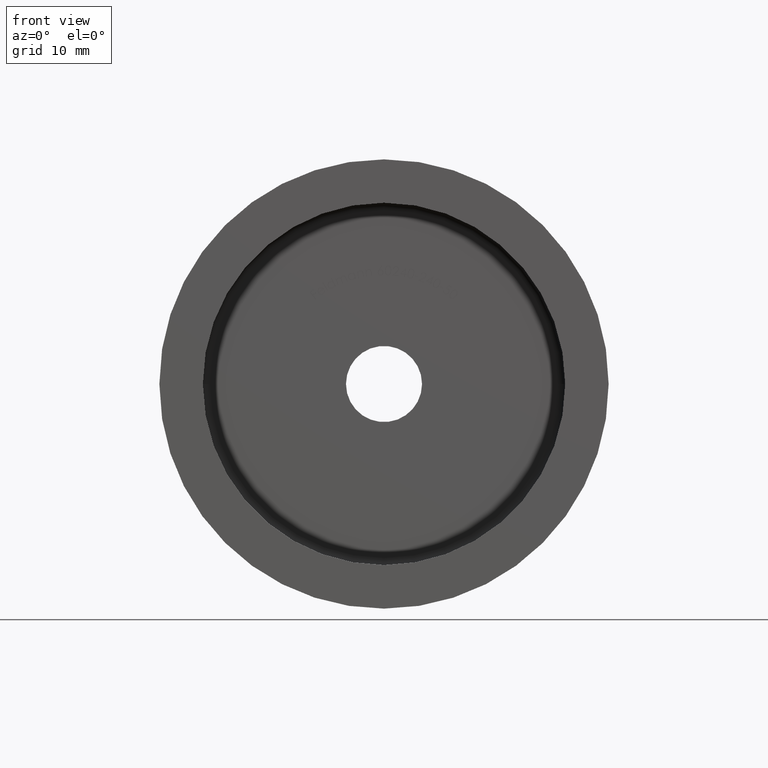
[diagram: clean part render]
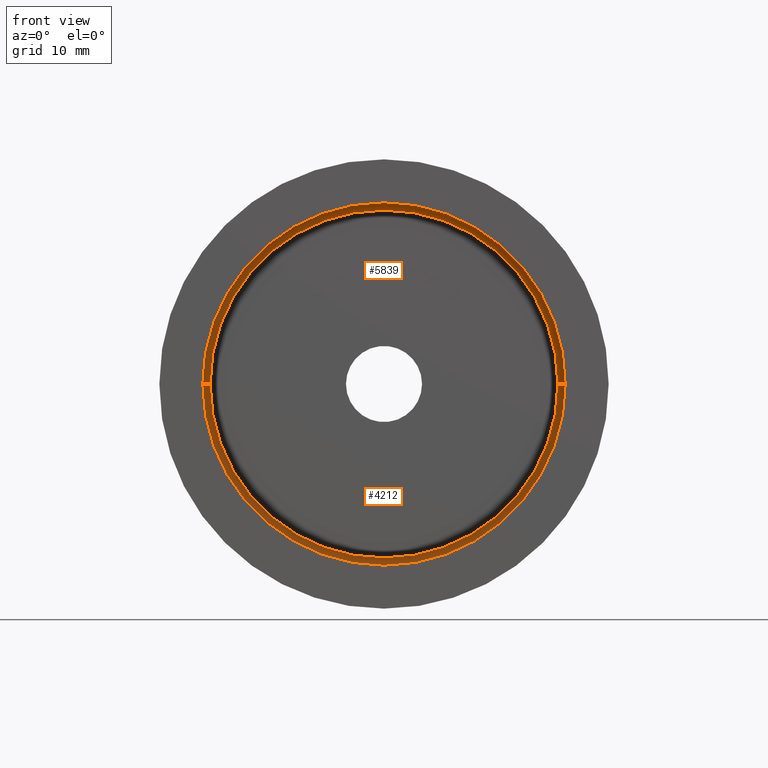
[diagram: same view with one multi-face feature highlighted, each face labeled with its STEP entity id]
A machine part, front view. The highlighted faces form ONE feature: a constant-radius fillet chain: 2 tangent blend faces with common blend radius 1 mm. The faces share edges in the B-rep.
Their STEP definitions:
[1] entity #5839 (Torus):
#2 = CARTESIAN_POINT ( 'NONE',  ( -25.00000000000000000, 44.00000000000001421, 0.000000000000000000 ) ) ;
#304 = AXIS2_PLACEMENT_3D ( 'NONE', #13006, #8448, #5991 ) ;
#769 = CIRCLE ( 'NONE', #304, 25.00000000000000000 ) ;
#778 = CARTESIAN_POINT ( 'NONE',  ( -1.387778780781443210E-16, 45.00000000000001421, 0.000000000000000000 ) ) ;
#909 = VERTEX_POINT ( 'NONE', #10748 ) ;
#1117 = EDGE_CURVE ( 'NONE', #11037, #12065, #4622, .T. ) ;
#1295 = AXIS2_PLACEMENT_3D ( 'NONE', #15080, #13841, #6815 ) ;
#2923 = CARTESIAN_POINT ( 'NONE',  ( 0.000000000000000000, 44.00000000000001421, 0.000000000000000000 ) ) ;
#3745 = DIRECTION ( 'NONE',  ( -1.224646799147353207E-16, -1.699538841808613888E-32, 1.000000000000000000 ) ) ;
#3831 = CIRCLE ( 'NONE', #1295, 1.000000000000000888 ) ;
#4251 = CARTESIAN_POINT ( 'NONE',  ( 3.061616997868383043E-15, 44.00000000000001421, 25.00000000000000000 ) ) ;
#4622 = CIRCLE ( 'NONE', #9635, 25.00000000000000000 ) ;
#4745 = CARTESIAN_POINT ( 'NONE',  ( 24.00000000000000000, 44.00000000000001421, 2.939152317953647894E-15 ) ) ;
#4844 = ORIENTED_EDGE ( 'NONE', *, *, #8884, .T. ) ;
#5131 = DIRECTION ( 'NONE',  ( -1.387778780781445676E-16, 1.000000000000000000, -0.000000000000000000 ) ) ;
#5213 = ORIENTED_EDGE ( 'NONE', *, *, #1117, .F. ) ;
#5343 = DIRECTION ( 'NONE',  ( -1.000000000000000000, 0.000000000000000000, 0.000000000000000000 ) ) ;
#5438 = EDGE_CURVE ( 'NONE', #12065, #909, #769, .T. ) ;
#5733 = AXIS2_PLACEMENT_3D ( 'NONE', #4745, #3745, #6069 ) ;
#5839 = ADVANCED_FACE ( 'NONE', ( #12766 ), #9674, .F. ) ;
#5991 = DIRECTION ( 'NONE',  ( -1.000000000000000000, 0.000000000000000000, 0.000000000000000000 ) ) ;
#6069 = DIRECTION ( 'NONE',  ( 1.000000000000000000, 0.000000000000000000, 1.224646799147353454E-16 ) ) ;
#6156 = EDGE_CURVE ( 'NONE', #909, #6272, #10552, .T. ) ;
#6272 = VERTEX_POINT ( 'NONE', #12277 ) ;
#6360 = DIRECTION ( 'NONE',  ( -1.000000000000000000, -1.387778780781445676E-16, 0.000000000000000000 ) ) ;
#6815 = DIRECTION ( 'NONE',  ( -1.000000000000000000, 0.000000000000000000, 0.000000000000000000 ) ) ;
#7596 = DIRECTION ( 'NONE',  ( 1.387778780781445676E-16, -1.000000000000000000, 0.000000000000000000 ) ) ;
#8448 = DIRECTION ( 'NONE',  ( -1.387778780781445676E-16, 1.000000000000000000, -0.000000000000000000 ) ) ;
#8884 = EDGE_CURVE ( 'NONE', #11037, #11250, #3831, .T. ) ;
#9635 = AXIS2_PLACEMENT_3D ( 'NONE', #11057, #14623, #5343 ) ;
#9674 = TOROIDAL_SURFACE ( 'NONE', #14140, 24.00000000000000000, 1.000000000000000000 ) ;
#10292 = EDGE_LOOP ( 'NONE', ( #11776, #11367, #5213, #4844, #14122 ) ) ;
#10552 = CIRCLE ( 'NONE', #5733, 1.000000000000000888 ) ;
#10748 = CARTESIAN_POINT ( 'NONE',  ( 25.00000000000000000, 44.00000000000001421, 3.061616997868383043E-15 ) ) ;
#11037 = VERTEX_POINT ( 'NONE', #2 ) ;
#11057 = CARTESIAN_POINT ( 'NONE',  ( 0.000000000000000000, 44.00000000000001421, 0.000000000000000000 ) ) ;
#11250 = VERTEX_POINT ( 'NONE', #13858 ) ;
#11367 = ORIENTED_EDGE ( 'NONE', *, *, #5438, .F. ) ;
#11727 = CIRCLE ( 'NONE', #12790, 24.00000000000000000 ) ;
#11776 = ORIENTED_EDGE ( 'NONE', *, *, #6156, .F. ) ;
#12065 = VERTEX_POINT ( 'NONE', #4251 ) ;
#12277 = CARTESIAN_POINT ( 'NONE',  ( 24.00000000000000000, 45.00000000000001421, 3.000384657911015469E-15 ) ) ;
#12699 = EDGE_CURVE ( 'NONE', #6272, #11250, #11727, .T. ) ;
#12766 = FACE_OUTER_BOUND ( 'NONE', #10292, .T. ) ;
#12790 = AXIS2_PLACEMENT_3D ( 'NONE', #778, #7596, #14614 ) ;
#13006 = CARTESIAN_POINT ( 'NONE',  ( 0.000000000000000000, 44.00000000000001421, 0.000000000000000000 ) ) ;
#13841 = DIRECTION ( 'NONE',  ( 0.000000000000000000, -0.000000000000000000, -1.000000000000000000 ) ) ;
#13858 = CARTESIAN_POINT ( 'NONE',  ( -24.00000000000000000, 45.00000000000001421, 0.000000000000000000 ) ) ;
#14122 = ORIENTED_EDGE ( 'NONE', *, *, #12699, .F. ) ;
#14140 = AXIS2_PLACEMENT_3D ( 'NONE', #2923, #5131, #6360 ) ;
#14614 = DIRECTION ( 'NONE',  ( -1.000000000000000000, 0.000000000000000000, 0.000000000000000000 ) ) ;
#14623 = DIRECTION ( 'NONE',  ( -1.387778780781445676E-16, 1.000000000000000000, -0.000000000000000000 ) ) ;
#15080 = CARTESIAN_POINT ( 'NONE',  ( -24.00000000000000000, 44.00000000000001421, 0.000000000000000000 ) ) ;
[2] entity #4212 (Torus):
#2 = CARTESIAN_POINT ( 'NONE',  ( -25.00000000000000000, 44.00000000000001421, 0.000000000000000000 ) ) ;
#603 = DIRECTION ( 'NONE',  ( -1.000000000000000000, -1.387778780781445676E-16, 0.000000000000000000 ) ) ;
#909 = VERTEX_POINT ( 'NONE', #10748 ) ;
#927 = CIRCLE ( 'NONE', #4187, 24.00000000000000000 ) ;
#1176 = AXIS2_PLACEMENT_3D ( 'NONE', #11219, #14701, #603 ) ;
#1295 = AXIS2_PLACEMENT_3D ( 'NONE', #15080, #13841, #6815 ) ;
#2098 = AXIS2_PLACEMENT_3D ( 'NONE', #14572, #12813, #10724 ) ;
#2534 = DIRECTION ( 'NONE',  ( -1.387778780781445676E-16, 1.000000000000000000, -0.000000000000000000 ) ) ;
#2546 = DIRECTION ( 'NONE',  ( -1.000000000000000000, 0.000000000000000000, 0.000000000000000000 ) ) ;
#3353 = ORIENTED_EDGE ( 'NONE', *, *, #6176, .F. ) ;
#3745 = DIRECTION ( 'NONE',  ( -1.224646799147353207E-16, -1.699538841808613888E-32, 1.000000000000000000 ) ) ;
#3831 = CIRCLE ( 'NONE', #1295, 1.000000000000000888 ) ;
#4187 = AXIS2_PLACEMENT_3D ( 'NONE', #7095, #13038, #2546 ) ;
#4212 = ADVANCED_FACE ( 'NONE', ( #12420 ), #11141, .F. ) ;
#4745 = CARTESIAN_POINT ( 'NONE',  ( 24.00000000000000000, 44.00000000000001421, 2.939152317953647894E-15 ) ) ;
#5731 = EDGE_CURVE ( 'NONE', #14440, #11037, #8765, .T. ) ;
#5733 = AXIS2_PLACEMENT_3D ( 'NONE', #4745, #3745, #6069 ) ;
#6069 = DIRECTION ( 'NONE',  ( 1.000000000000000000, 0.000000000000000000, 1.224646799147353454E-16 ) ) ;
#6156 = EDGE_CURVE ( 'NONE', #909, #6272, #10552, .T. ) ;
#6176 = EDGE_CURVE ( 'NONE', #11250, #6272, #927, .T. ) ;
#6272 = VERTEX_POINT ( 'NONE', #12277 ) ;
#6286 = CARTESIAN_POINT ( 'NONE',  ( 0.000000000000000000, 44.00000000000001421, -25.00000000000000000 ) ) ;
#6815 = DIRECTION ( 'NONE',  ( -1.000000000000000000, 0.000000000000000000, 0.000000000000000000 ) ) ;
#7095 = CARTESIAN_POINT ( 'NONE',  ( -1.387778780781443210E-16, 45.00000000000001421, 0.000000000000000000 ) ) ;
#7140 = ORIENTED_EDGE ( 'NONE', *, *, #5731, .F. ) ;
#8765 = CIRCLE ( 'NONE', #11688, 25.00000000000000000 ) ;
#8884 = EDGE_CURVE ( 'NONE', #11037, #11250, #3831, .T. ) ;
#9478 = CARTESIAN_POINT ( 'NONE',  ( 0.000000000000000000, 44.00000000000001421, 0.000000000000000000 ) ) ;
#10552 = CIRCLE ( 'NONE', #5733, 1.000000000000000888 ) ;
#10668 = ORIENTED_EDGE ( 'NONE', *, *, #6156, .T. ) ;
#10724 = DIRECTION ( 'NONE',  ( -1.000000000000000000, 0.000000000000000000, 0.000000000000000000 ) ) ;
#10748 = CARTESIAN_POINT ( 'NONE',  ( 25.00000000000000000, 44.00000000000001421, 3.061616997868383043E-15 ) ) ;
#11037 = VERTEX_POINT ( 'NONE', #2 ) ;
#11141 = TOROIDAL_SURFACE ( 'NONE', #1176, 24.00000000000000000, 1.000000000000000000 ) ;
#11219 = CARTESIAN_POINT ( 'NONE',  ( 0.000000000000000000, 44.00000000000001421, 0.000000000000000000 ) ) ;
#11250 = VERTEX_POINT ( 'NONE', #13858 ) ;
#11688 = AXIS2_PLACEMENT_3D ( 'NONE', #9478, #2534, #11964 ) ;
#11964 = DIRECTION ( 'NONE',  ( -1.000000000000000000, 0.000000000000000000, 0.000000000000000000 ) ) ;
#12277 = CARTESIAN_POINT ( 'NONE',  ( 24.00000000000000000, 45.00000000000001421, 3.000384657911015469E-15 ) ) ;
#12420 = FACE_OUTER_BOUND ( 'NONE', #13845, .T. ) ;
#12813 = DIRECTION ( 'NONE',  ( -1.387778780781445676E-16, 1.000000000000000000, -0.000000000000000000 ) ) ;
#13038 = DIRECTION ( 'NONE',  ( 1.387778780781445676E-16, -1.000000000000000000, 0.000000000000000000 ) ) ;
#13420 = ORIENTED_EDGE ( 'NONE', *, *, #8884, .F. ) ;
#13841 = DIRECTION ( 'NONE',  ( 0.000000000000000000, -0.000000000000000000, -1.000000000000000000 ) ) ;
#13845 = EDGE_LOOP ( 'NONE', ( #14290, #10668, #3353, #13420, #7140 ) ) ;
#13858 = CARTESIAN_POINT ( 'NONE',  ( -24.00000000000000000, 45.00000000000001421, 0.000000000000000000 ) ) ;
#14035 = EDGE_CURVE ( 'NONE', #909, #14440, #14834, .T. ) ;
#14290 = ORIENTED_EDGE ( 'NONE', *, *, #14035, .F. ) ;
#14440 = VERTEX_POINT ( 'NONE', #6286 ) ;
#14572 = CARTESIAN_POINT ( 'NONE',  ( 0.000000000000000000, 44.00000000000001421, 0.000000000000000000 ) ) ;
#14701 = DIRECTION ( 'NONE',  ( -1.387778780781445676E-16, 1.000000000000000000, -0.000000000000000000 ) ) ;
#14834 = CIRCLE ( 'NONE', #2098, 25.00000000000000000 ) ;
#15080 = CARTESIAN_POINT ( 'NONE',  ( -24.00000000000000000, 44.00000000000001421, 0.000000000000000000 ) ) ;